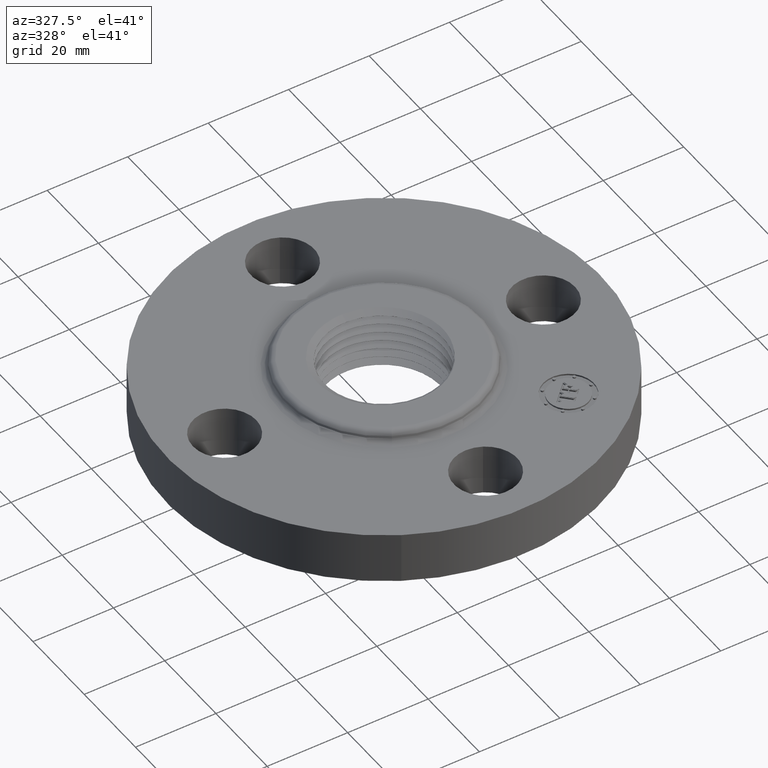
[diagram: clean part render]
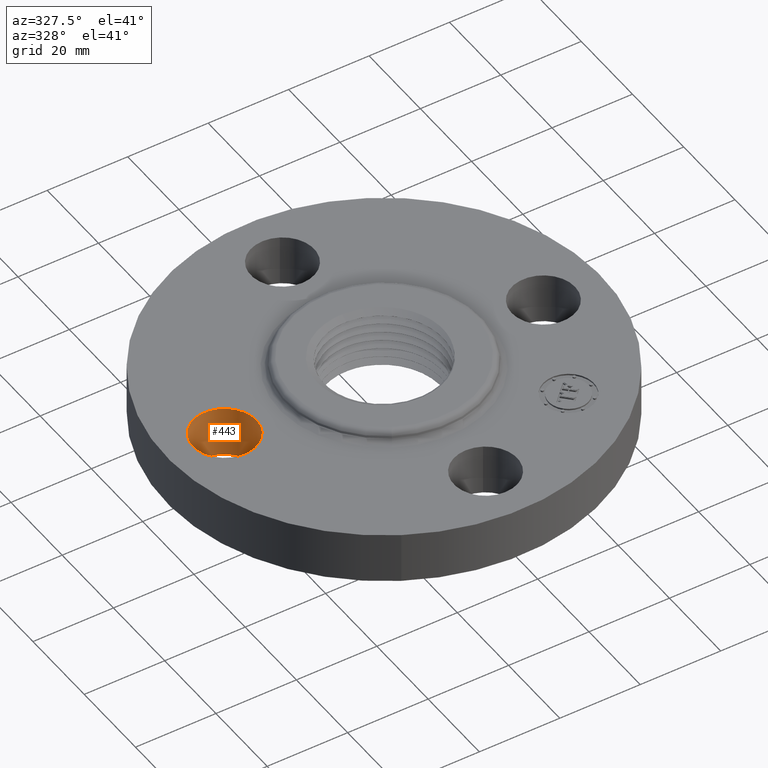
[diagram: same view with one face highlighted and labeled with its STEP entity id]
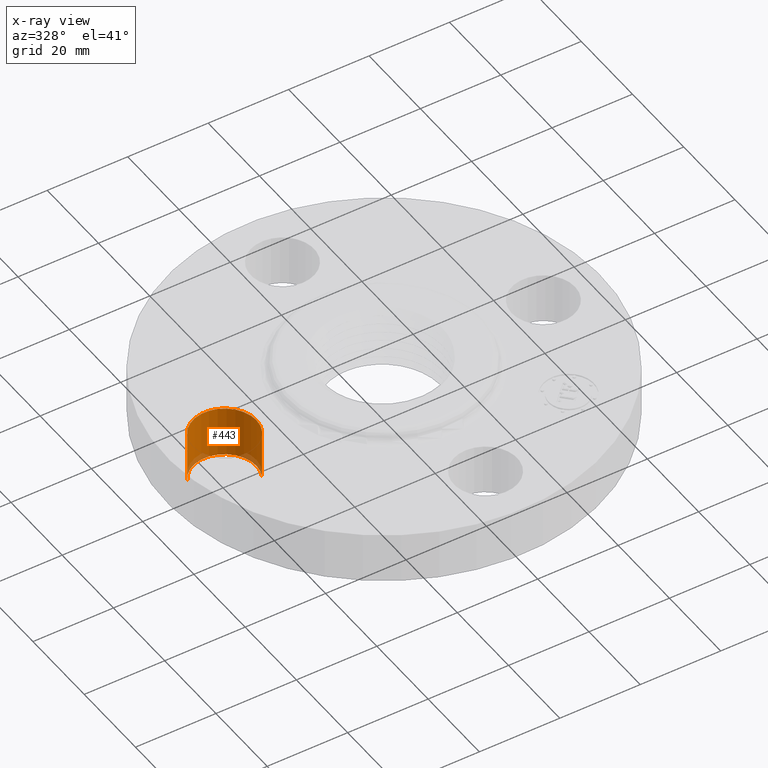
[diagram: x-ray of the same camera — body ghosted, the highlighted face saturated]
A machine part, auxiliary view. The second image highlights one B-rep face of the part: STEP entity #443.
The next image is the same camera in x-ray: the body ghosted, the highlighted face saturated — about 7% of this face is hidden behind the body in this view.
In plain terms, the highlighted cylindrical surface (partial cylindrical patch) has radius 7.874 mm, axis along (-0, 0, -1).
Its self-contained STEP definition (entity closure, byte-faithful):
#214=AXIS2_PLACEMENT_3D('Circle Axis2P3D',#212,#213,$) ;
#416=AXIS2_PLACEMENT_3D('Cylinder Axis2P3D',#413,#414,#415) ;
#434=AXIS2_PLACEMENT_3D('Circle Axis2P3D',#432,#433,$) ;
#207=CARTESIAN_POINT('Vertex',(-1.28794940582,-0.148621916968,0.)) ;
#209=CARTESIAN_POINT('Vertex',(-1.83205059419,0.148621916968,0.)) ;
#212=CARTESIAN_POINT('Axis2P3D Location',(-1.56000000001,-2.44773580232E-016,0.)) ;
#413=CARTESIAN_POINT('Axis2P3D Location',(-1.56000000001,-1.91044900668E-016,0.496062992128)) ;
#418=CARTESIAN_POINT('Line Origine',(-1.83205059419,0.148621916968,0.250000000001)) ;
#422=CARTESIAN_POINT('Vertex',(-1.83205059419,0.148621916968,0.500000000002)) ;
#425=CARTESIAN_POINT('Line Origine',(-1.28794940582,-0.148621916968,0.250000000001)) ;
#429=CARTESIAN_POINT('Vertex',(-1.28794940582,-0.148621916968,0.500000000002)) ;
#432=CARTESIAN_POINT('Axis2P3D Location',(-1.56000000001,-1.91044900668E-016,0.500000000002)) ;
#213=DIRECTION('Axis2P3D Direction',(0.,0.,-0.0393700787402)) ;
#414=DIRECTION('Axis2P3D Direction',(-0.,0.,-0.0393700787402)) ;
#415=DIRECTION('Axis2P3D XDirection',(0.0345504945626,-0.0188750212049,-0.)) ;
#419=DIRECTION('Vector Direction',(0.,0.,-0.0393700787402)) ;
#426=DIRECTION('Vector Direction',(0.,0.,-0.0393700787402)) ;
#433=DIRECTION('Axis2P3D Direction',(-0.,0.,-0.0393700787402)) ;
#420=VECTOR('Line Direction',#419,0.0393700787402) ;
#427=VECTOR('Line Direction',#426,0.0393700787402) ;
#438=ORIENTED_EDGE('',*,*,#424,.F.) ;
#439=ORIENTED_EDGE('',*,*,#216,.T.) ;
#440=ORIENTED_EDGE('',*,*,#431,.T.) ;
#441=ORIENTED_EDGE('',*,*,#436,.F.) ;
#443=ADVANCED_FACE('PartBody',(#442),#417,.F.) ;
#215=CIRCLE('generated circle',#214,0.310000000001) ;
#435=CIRCLE('generated circle',#434,0.310000000001) ;
#417=CYLINDRICAL_SURFACE('generated cylinder',#416,0.310000000001) ;
#216=EDGE_CURVE('',#210,#208,#215,.T.) ;
#424=EDGE_CURVE('',#210,#423,#421,.F.) ;
#431=EDGE_CURVE('',#208,#430,#428,.F.) ;
#436=EDGE_CURVE('',#423,#430,#435,.T.) ;
#437=EDGE_LOOP('',(#438,#439,#440,#441)) ;
#442=FACE_OUTER_BOUND('',#437,.T.) ;
#421=LINE('Line',#418,#420) ;
#428=LINE('Line',#425,#427) ;
#208=VERTEX_POINT('',#207) ;
#210=VERTEX_POINT('',#209) ;
#423=VERTEX_POINT('',#422) ;
#430=VERTEX_POINT('',#429) ;